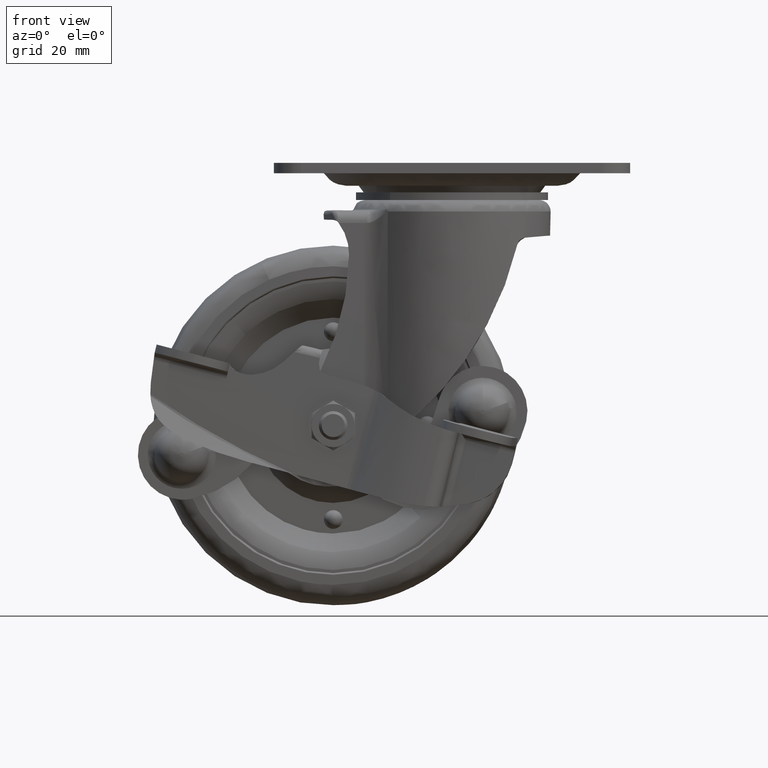
[diagram: clean part render]
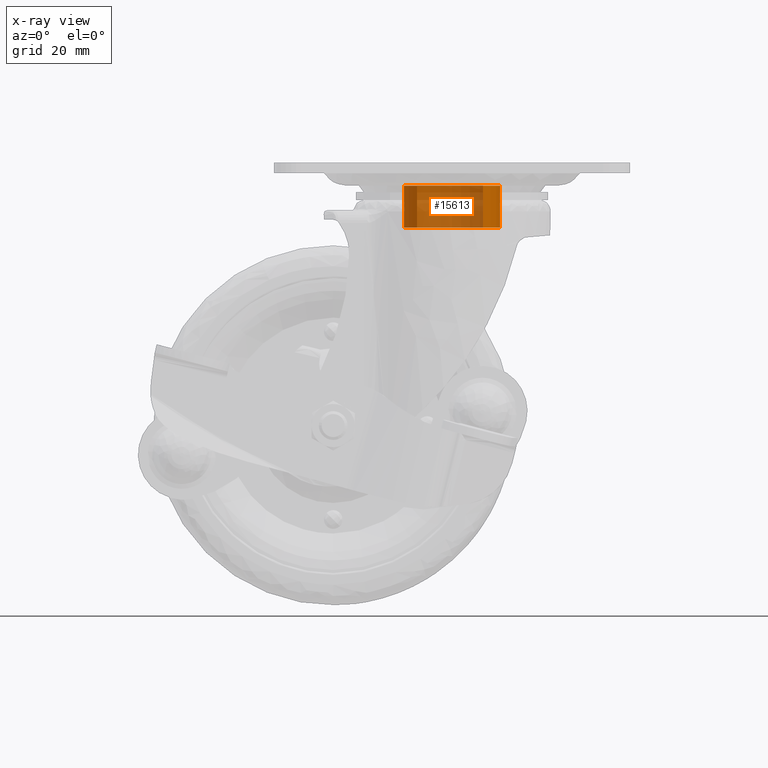
[diagram: x-ray — body ghosted, one internal face saturated and labeled with its STEP entity id]
A machine part, front view, then the same camera in x-ray: the body is ghosted and one INTERNAL B-rep face — a face not visible from any outside direction — is saturated and labeled: STEP entity #15613.
In plain terms, the highlighted face is a freeform B-spline surface patch.
Its self-contained STEP definition (entity closure, byte-faithful):
#15461=CARTESIAN_POINT('',(8.620656212400037,-10.193467833255205,-18.265750075000110));
#15462=CARTESIAN_POINT('',(8.912388882377819,-9.946748356140724,-18.265750075000103));
#15463=CARTESIAN_POINT('',(9.189533585511613,-9.683747853014037,-18.265750075000099));
#15464=CARTESIAN_POINT('',(18.873281438525655,-0.494214267502423,-18.265750075000099));
#15465=CARTESIAN_POINT('',(9.683747853014037,9.189533585511613,-18.265750075000099));
#15466=CARTESIAN_POINT('',(0.494214267502423,18.873281438525655,-18.265750075000099));
#15467=CARTESIAN_POINT('',(-9.189533585511613,9.683747853014037,-18.265750075000099));
#15468=CARTESIAN_POINT('',(-18.873281438525655,0.494214267502423,-18.265750075000099));
#15469=CARTESIAN_POINT('',(-9.683747853014037,-9.189533585511613,-18.265750075000099));
#15470=CARTESIAN_POINT('',(8.620656212400037,-10.193467833255205,-6.075681248124997));
#15471=CARTESIAN_POINT('',(8.912388882377819,-9.946748356140724,-6.075681248124997));
#15472=CARTESIAN_POINT('',(9.189533585511613,-9.683747853014037,-6.075681248124997));
#15473=CARTESIAN_POINT('',(18.873281438525655,-0.494214267502423,-6.075681248124996));
#15474=CARTESIAN_POINT('',(9.683747853014037,9.189533585511613,-6.075681248124996));
#15475=CARTESIAN_POINT('',(0.494214267502423,18.873281438525655,-6.075681248124996));
#15476=CARTESIAN_POINT('',(-9.189533585511613,9.683747853014037,-6.075681248124997));
#15477=CARTESIAN_POINT('',(-18.873281438525655,0.494214267502423,-6.075681248124997));
#15478=CARTESIAN_POINT('',(-9.683747853014037,-9.189533585511613,-6.075681248124998));
#15486=(BOUNDED_SURFACE()B_SPLINE_SURFACE(2,1,((#15461,#15470),(#15462,#15471),(#15463,#15472),(#15464,#15473),(#15465,#15474),(#15466,#15475),(#15467,#15476),(#15468,#15477),(#15469,#15478)),.UNSPECIFIED.,.F.,.F.,.U.)B_SPLINE_SURFACE_WITH_KNOTS((3,2,2,2,3),(2,2),(0.0,0.884760169228932,23.003764399952200,45.122768630675473,67.241772861398744),(0.0,12.190068826875111),.UNSPECIFIED.)GEOMETRIC_REPRESENTATION_ITEM()RATIONAL_B_SPLINE_SURFACE(((0.977505800795127,0.977505800795127),(0.988284271247462,0.988284271247462),(1.0,1.0),(0.707106781186548,0.707106781186548),(1.0,1.0),(0.707106781186548,0.707106781186548),(1.0,1.0),(0.707106781186548,0.707106781186548),(1.0,1.0)))REPRESENTATION_ITEM('')SURFACE());
#15487=CARTESIAN_POINT('',(8.620656938265043,-10.193468360937150,-17.975683000016179));
#15488=VERTEX_POINT('',#15487);
#15489=CARTESIAN_POINT('',(13.350000000000000,0.0,-17.975683000000100));
#15490=VERTEX_POINT('',#15489);
#15491=CARTESIAN_POINT('',(8.620656938265043,-10.193468360937150,-17.975683000016179));
#15492=CARTESIAN_POINT('',(9.820922850449243,-9.180094113213965,-17.975683000014609));
#15493=CARTESIAN_POINT('',(11.307443753990469,-7.384342638018801,-17.975683000011738));
#15494=CARTESIAN_POINT('',(12.506003391145510,-4.800032023489415,-17.975683000007681));
#15495=CARTESIAN_POINT('',(13.167831799331459,-2.597497482983670,-17.975683000004199));
#15496=CARTESIAN_POINT('',(13.350206412329911,-1.026974586763910,-17.975683000001730));
#15497=CARTESIAN_POINT('',(13.350000000000000,0.0,-17.975683000000100));
#15498=B_SPLINE_CURVE_WITH_KNOTS('',3,(#15491,#15492,#15493,#15494,#15495,#15496,#15497),.UNSPECIFIED.,.F.,.U.,(4,1,1,1,4),(0.000000119221401,4.711948475607247,6.886642524648398,8.517712035597654,11.598590880945389),.UNSPECIFIED.);
#15499=EDGE_CURVE('',#15488,#15490,#15498,.T.);
#15500=ORIENTED_EDGE('',*,*,#15499,.F.);
#15501=CARTESIAN_POINT('',(8.620656936277719,-10.193468362617820,-6.373000000000001));
#15502=VERTEX_POINT('',#15501);
#15503=CARTESIAN_POINT('',(8.620656938265043,-10.193468360937150,-17.975683000016179));
#15504=CARTESIAN_POINT('',(8.620656936277719,-10.193468362617820,-6.373000000000001));
#15505=QUASI_UNIFORM_CURVE('',1,(#15503,#15504),.UNSPECIFIED.,.F.,.U.);
#15506=EDGE_CURVE('',#15488,#15502,#15505,.T.);
#15507=ORIENTED_EDGE('',*,*,#15506,.T.);
#15508=CARTESIAN_POINT('',(13.350000000000000,0.0,-6.373000000000000));
#15509=VERTEX_POINT('',#15508);
#15510=CARTESIAN_POINT('',(8.620656936277719,-10.193468362617820,-6.373000000000001));
#15511=CARTESIAN_POINT('',(9.404919471733452,-9.530451914458830,-6.372999999999997));
#15512=CARTESIAN_POINT('',(10.777605409813720,-8.066613987014877,-6.373000000000018));
#15513=CARTESIAN_POINT('',(12.281500472002531,-5.496767436178639,-6.372999999999952));
#15514=CARTESIAN_POINT('',(13.158645628311451,-2.778787885467019,-6.373000000000146));
#15515=CARTESIAN_POINT('',(13.350120900814060,-0.906141009183157,-6.372999999999807));
#15516=CARTESIAN_POINT('',(13.350000000000000,0.0,-6.373000000000000));
#15517=B_SPLINE_CURVE_WITH_KNOTS('',3,(#15510,#15511,#15512,#15513,#15514,#15515,#15516),.UNSPECIFIED.,.F.,.U.,(4,1,1,1,4),(0.000000119222193,3.080878965321334,5.980466854465330,8.880174347484127,11.598590883548139),.UNSPECIFIED.);
#15518=EDGE_CURVE('',#15502,#15509,#15517,.T.);
#15519=ORIENTED_EDGE('',*,*,#15518,.T.);
#15520=CARTESIAN_POINT('',(-0.000003535619243,13.349999999999531,-6.373000000000000));
#15521=VERTEX_POINT('',#15520);
#15522=CARTESIAN_POINT('',(13.350000000000000,0.0,-6.373000000000000));
#15523=CARTESIAN_POINT('',(13.350239828341181,1.037601428147422,-6.372999999999994));
#15524=CARTESIAN_POINT('',(13.126003003533819,2.948837351288266,-6.373000000000014));
#15525=CARTESIAN_POINT('',(12.322710737414610,5.283808094178168,-6.372999999999992));
#15526=CARTESIAN_POINT('',(11.239451483121760,7.310435895458305,-6.373000000000002));
#15527=CARTESIAN_POINT('',(9.744403436204923,9.275716222686947,-6.373000000000013));
#15528=CARTESIAN_POINT('',(7.568068356083909,11.129814091089910,-6.372999999999979));
#15529=CARTESIAN_POINT('',(5.041746864991048,12.460271931171860,-6.373000000000003));
#15530=CARTESIAN_POINT('',(2.511998607617358,13.193712754013919,-6.373000000000021));
#15531=CARTESIAN_POINT('',(0.819124481695227,13.350083189690441,-6.372999999999991));
#15532=CARTESIAN_POINT('',(-0.000003535619243,13.349999999999531,-6.373000000000000));
#15533=B_SPLINE_CURVE_WITH_KNOTS('',3,(#15522,#15523,#15524,#15525,#15526,#15527,#15528,#15529,#15530,#15531,#15532),.UNSPECIFIED.,.F.,.U.,(4,1,1,1,1,1,1,1,4),(0.000000360786863,3.112758550177286,5.734063501002732,7.372364204808644,9.993675494371235,13.106392905943601,15.891532090543580,18.512879856960200,20.970264534152061),.UNSPECIFIED.);
#15534=EDGE_CURVE('',#15509,#15521,#15533,.T.);
#15535=ORIENTED_EDGE('',*,*,#15534,.T.);
#15536=CARTESIAN_POINT('',(-13.350000000000000,0.0,-6.373000000000000));
#15537=VERTEX_POINT('',#15536);
#15538=CARTESIAN_POINT('',(-0.000003535619243,13.349999999999531,-6.373000000000000));
#15539=CARTESIAN_POINT('',(-0.982978871594662,13.350191733158059,-6.372999999999999));
#15540=CARTESIAN_POINT('',(-2.675789697068734,13.162125400169661,-6.372999999999993));
#15541=CARTESIAN_POINT('',(-5.187498667838024,12.383438138584539,-6.372999999999991));
#15542=CARTESIAN_POINT('',(-7.373707367815813,11.232070709121000,-6.373000000000027));
#15543=CARTESIAN_POINT('',(-9.674567482577198,9.367506283488398,-6.372999999999951));
#15544=CARTESIAN_POINT('',(-11.403809832458560,7.152028692106835,-6.372999999999975));
#15545=CARTESIAN_POINT('',(-12.504796976520060,4.822909405006649,-6.373000000000074));
#15546=CARTESIAN_POINT('',(-13.174268686823909,2.566563510715759,-6.372999999999900));
#15547=CARTESIAN_POINT('',(-13.350163791997261,0.982975571156160,-6.373000000000136));
#15548=CARTESIAN_POINT('',(-13.350000000000000,0.0,-6.373000000000000));
#15549=B_SPLINE_CURVE_WITH_KNOTS('',3,(#15538,#15539,#15540,#15541,#15542,#15543,#15544,#15545,#15546,#15547,#15548),.UNSPECIFIED.,.F.,.U.,(4,1,1,1,1,1,1,1,4),(0.000000362012003,2.948896290367951,5.078732285212777,7.863873236920442,10.321409377238760,13.925535285687010,16.219191554535112,18.021368250938838,20.970260548660189),.UNSPECIFIED.);
#15550=EDGE_CURVE('',#15521,#15537,#15549,.T.);
#15551=ORIENTED_EDGE('',*,*,#15550,.T.);
#15552=CARTESIAN_POINT('',(-9.683747176436388,-9.189533016151856,-6.373000000000001));
#15553=VERTEX_POINT('',#15552);
#15554=CARTESIAN_POINT('',(-13.350000000000000,0.0,-6.373000000000000));
#15555=CARTESIAN_POINT('',(-13.350176754724639,-1.003017330676435,-6.372999999999979));
#15556=CARTESIAN_POINT('',(-13.170646069886850,-2.586610043249860,-6.373000000000046));
#15557=CARTESIAN_POINT('',(-12.427880162198450,-5.070161830180595,-6.372999999999964));
#15558=CARTESIAN_POINT('',(-11.348239564946860,-7.203063346897162,-6.373000000000024));
#15559=CARTESIAN_POINT('',(-10.228843381202431,-8.615187977958385,-6.372999999999983));
#15560=CARTESIAN_POINT('',(-9.683747176436388,-9.189533016151856,-6.373000000000001));
#15561=B_SPLINE_CURVE_WITH_KNOTS('',3,(#15554,#15555,#15556,#15557,#15558,#15559,#15560),.UNSPECIFIED.,.F.,.U.,(4,1,1,1,4),(0.000000079193017,3.009018060862350,4.751110425129220,7.760088898190725,10.135622443708790),.UNSPECIFIED.);
#15562=EDGE_CURVE('',#15537,#15553,#15561,.T.);
#15563=ORIENTED_EDGE('',*,*,#15562,.T.);
#15564=CARTESIAN_POINT('',(-9.683747176055590,-9.189533016553114,-17.975682999998821));
#15565=VERTEX_POINT('',#15564);
#15566=CARTESIAN_POINT('',(-9.683747176055590,-9.189533016553114,-17.975682999998821));
#15567=CARTESIAN_POINT('',(-9.683747176436388,-9.189533016151856,-6.373000000000001));
#15568=QUASI_UNIFORM_CURVE('',1,(#15566,#15567),.UNSPECIFIED.,.F.,.U.);
#15569=EDGE_CURVE('',#15565,#15553,#15568,.T.);
#15570=ORIENTED_EDGE('',*,*,#15569,.F.);
#15571=CARTESIAN_POINT('',(-13.350000000000000,0.0,-17.975683000000100));
#15572=VERTEX_POINT('',#15571);
#15573=CARTESIAN_POINT('',(-13.350000000000000,0.0,-17.975683000000100));
#15574=CARTESIAN_POINT('',(-13.350362768286541,-1.161399324408089,-17.975682999999940));
#15575=CARTESIAN_POINT('',(-13.072646297263789,-3.272804048272165,-17.975682999999631));
#15576=CARTESIAN_POINT('',(-11.851178702301290,-6.443480240528694,-17.975682999999211));
#15577=CARTESIAN_POINT('',(-10.556238295658821,-8.270827498395949,-17.975682999998991));
#15578=CARTESIAN_POINT('',(-9.683747176055590,-9.189533016553114,-17.975682999998821));
#15579=B_SPLINE_CURVE_WITH_KNOTS('',3,(#15573,#15574,#15575,#15576,#15577,#15578),.UNSPECIFIED.,.F.,.U.,(4,1,1,4),(0.000000079192928,3.484136925370381,6.334762790060439,10.135622444261999),.UNSPECIFIED.);
#15580=EDGE_CURVE('',#15572,#15565,#15579,.T.);
#15581=ORIENTED_EDGE('',*,*,#15580,.F.);
#15582=CARTESIAN_POINT('',(-0.000003535619181,13.349999999999531,-17.975683000000100));
#15583=VERTEX_POINT('',#15582);
#15584=CARTESIAN_POINT('',(-0.000003535619181,13.349999999999531,-17.975683000000100));
#15585=CARTESIAN_POINT('',(-0.873748525146033,13.350072551413479,-17.975683000000121));
#15586=CARTESIAN_POINT('',(-2.785125830445066,13.161852857957530,-17.975683000000078));
#15587=CARTESIAN_POINT('',(-5.296011235804095,12.349370484780851,-17.975683000000139));
#15588=CARTESIAN_POINT('',(-7.735473749810969,10.987143519277550,-17.975683000000089));
#15589=CARTESIAN_POINT('',(-9.618825916461868,9.382692807298582,-17.975683000000188));
#15590=CARTESIAN_POINT('',(-11.079327993623281,7.534341952930469,-17.975682999999851));
#15591=CARTESIAN_POINT('',(-12.088307092659850,5.778428719549591,-17.975683000000430));
#15592=CARTESIAN_POINT('',(-13.050015066522310,3.330915333121877,-17.975682999999680));
#15593=CARTESIAN_POINT('',(-13.350542220775271,1.310702872086818,-17.975683000000391));
#15594=CARTESIAN_POINT('',(-13.350000000000000,0.0,-17.975683000000100));
#15595=B_SPLINE_CURVE_WITH_KNOTS('',3,(#15584,#15585,#15586,#15587,#15588,#15589,#15590,#15591,#15592,#15593,#15594),.UNSPECIFIED.,.F.,.U.,(4,1,1,1,1,1,1,1,4),(0.000000362011960,2.621269219836339,5.734062412103404,7.863873236920698,10.976586254135491,13.106390411712241,14.908537472340340,17.038344169857609,20.970260548660221),.UNSPECIFIED.);
#15596=EDGE_CURVE('',#15583,#15572,#15595,.T.);
#15597=ORIENTED_EDGE('',*,*,#15596,.F.);
#15598=CARTESIAN_POINT('',(13.350000000000000,0.0,-17.975683000000100));
#15599=CARTESIAN_POINT('',(13.350636270430410,1.310731370971748,-17.975683000000110));
#15600=CARTESIAN_POINT('',(13.049843336357030,3.330848906643544,-17.975683000000110));
#15601=CARTESIAN_POINT('',(11.928265207616739,6.186470451542417,-17.975683000000071));
#15602=CARTESIAN_POINT('',(10.532390296033199,8.361074190323205,-17.975683000000188));
#15603=CARTESIAN_POINT('',(8.374186721159623,10.546151609563481,-17.975682999999972));
#15604=CARTESIAN_POINT('',(5.906712665951574,12.108786147542601,-17.975683000000171));
#15605=CARTESIAN_POINT('',(2.948803453493791,13.125998291230619,-17.975683000000078));
#15606=CARTESIAN_POINT('',(1.037599141871711,13.350208780017249,-17.975683000000110));
#15607=CARTESIAN_POINT('',(-0.000003535619181,13.349999999999531,-17.975683000000100));
#15608=B_SPLINE_CURVE_WITH_KNOTS('',3,(#15598,#15599,#15600,#15601,#15602,#15603,#15604,#15605,#15606,#15607),.UNSPECIFIED.,.F.,.U.,(4,1,1,1,1,1,1,4),(0.000000360787741,3.931921519442785,6.061723061464281,9.174522430638966,11.631846743779720,15.236202338505580,17.857499464226759,20.970264534152030),.UNSPECIFIED.);
#15609=EDGE_CURVE('',#15490,#15583,#15608,.T.);
#15610=ORIENTED_EDGE('',*,*,#15609,.F.);
#15611=EDGE_LOOP('',(#15500,#15507,#15519,#15535,#15551,#15563,#15570,#15581,#15597,#15610));
#15612=FACE_OUTER_BOUND('',#15611,.T.);
#15613=ADVANCED_FACE('',(#15612),#15486,.F.);